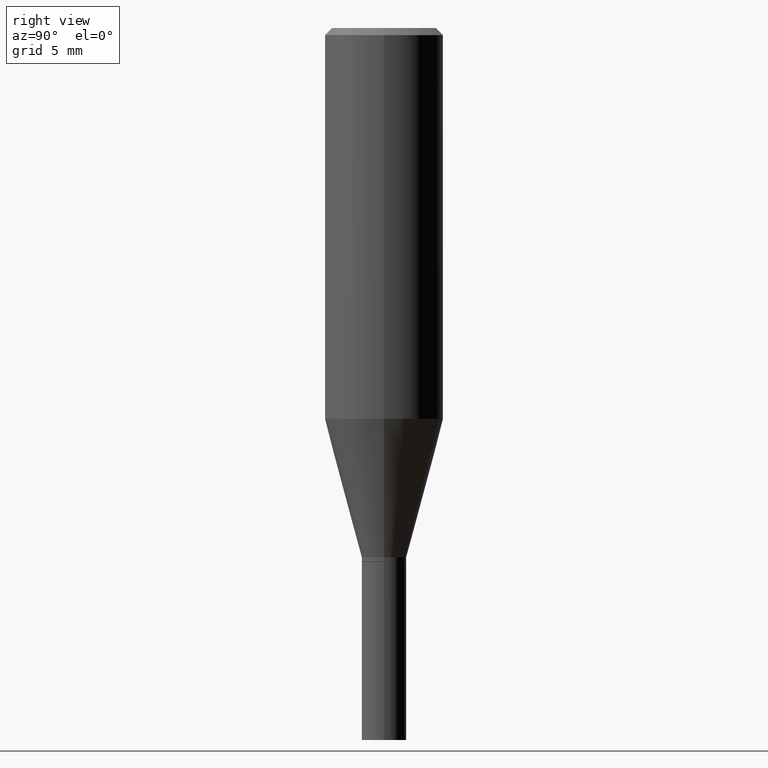
[diagram: clean part render]
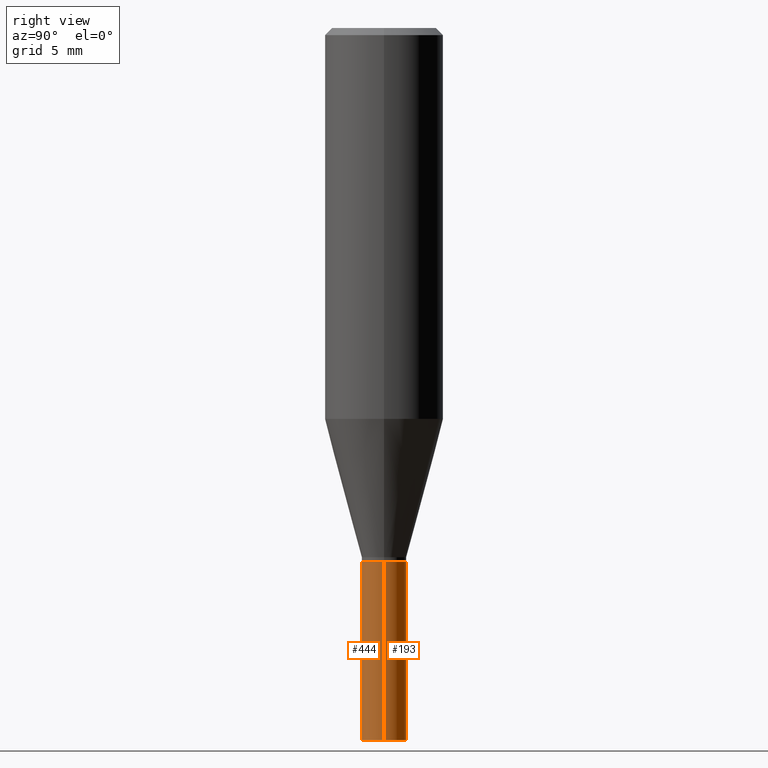
[diagram: same view with one multi-face feature highlighted, each face labeled with its STEP entity id]
A machine part, right view. The highlighted faces form ONE feature: a constant-radius fillet chain: 2 tangent blend faces with common blend radius 1.1913 mm. The faces share edges in the B-rep.
Their STEP definitions:
[1] entity #444 (Cylinder):
#16 = AXIS2_PLACEMENT_3D ( 'NONE', #169, #165, #236 ) ;
#19 = DIRECTION ( 'NONE',  ( -2.445468806185136597E-29, 3.491481338843145583E-15, 1.000000000000000000 ) ) ;
#22 = CARTESIAN_POINT ( 'NONE',  ( 2.751152406958279232E-29, -3.927916506198539224E-15, -1.125000000000000222 ) ) ;
#56 = EDGE_CURVE ( 'NONE', #301, #412, #255, .T. ) ;
#64 = CARTESIAN_POINT ( 'NONE',  ( 0.04689999999999999725, -4.255417455782025127E-15, -1.125000000000000222 ) ) ;
#67 = EDGE_CURVE ( 'NONE', #466, #210, #80, .T. ) ;
#80 = LINE ( 'NONE', #222, #166 ) ;
#91 = ORIENTED_EDGE ( 'NONE', *, *, #140, .F. ) ;
#139 = FACE_OUTER_BOUND ( 'NONE', #421, .T. ) ;
#140 = EDGE_CURVE ( 'NONE', #210, #412, #221, .T. ) ;
#148 = AXIS2_PLACEMENT_3D ( 'NONE', #162, #300, #291 ) ;
#157 = ORIENTED_EDGE ( 'NONE', *, *, #333, .T. ) ;
#162 = CARTESIAN_POINT ( 'NONE',  ( 3.668203209277704895E-29, -5.237222008264718177E-15, -1.500000000000000222 ) ) ;
#165 = DIRECTION ( 'NONE',  ( -2.445468806185136597E-29, 3.491481338843145583E-15, 1.000000000000000000 ) ) ;
#166 = VECTOR ( 'NONE', #435, 39.37007874015748143 ) ;
#169 = CARTESIAN_POINT ( 'NONE',  ( 0.000000000000000000, 0.000000000000000000, 0.000000000000000000 ) ) ;
#182 = DIRECTION ( 'NONE',  ( -2.445468806185136877E-29, 3.491481338843145188E-15, 1.000000000000000000 ) ) ;
#187 = ORIENTED_EDGE ( 'NONE', *, *, #56, .T. ) ;
#210 = VERTEX_POINT ( 'NONE', #361 ) ;
#221 = CIRCLE ( 'NONE', #407, 0.04689999999999999725 ) ;
#222 = CARTESIAN_POINT ( 'NONE',  ( -0.04689999999999999725, 3.332445430714869676E-16, -2.306980557329550952E-30 ) ) ;
#228 = DIRECTION ( 'NONE',  ( 1.000000000000000000, -6.982962677686266711E-15, 0.000000000000000000 ) ) ;
#236 = DIRECTION ( 'NONE',  ( 1.000000000000000000, -6.982962677686266711E-15, 4.876176775795936353E-29 ) ) ;
#255 = LINE ( 'NONE', #318, #395 ) ;
#290 = ORIENTED_EDGE ( 'NONE', *, *, #67, .F. ) ;
#291 = DIRECTION ( 'NONE',  ( 1.000000000000000000, -6.982962677686256455E-15, 0.000000000000000000 ) ) ;
#298 = CARTESIAN_POINT ( 'NONE',  ( 0.04689999999999999725, -5.564722957848204079E-15, -1.500000000000000222 ) ) ;
#300 = DIRECTION ( 'NONE',  ( -2.445468806185136597E-29, 3.491481338843145583E-15, 1.000000000000000000 ) ) ;
#301 = VERTEX_POINT ( 'NONE', #298 ) ;
#318 = CARTESIAN_POINT ( 'NONE',  ( 0.04689999999999999725, -3.275009495834859024E-16, 2.286926907848294038E-30 ) ) ;
#333 = EDGE_CURVE ( 'NONE', #466, #301, #338, .T. ) ;
#338 = CIRCLE ( 'NONE', #148, 0.04689999999999999725 ) ;
#348 = CYLINDRICAL_SURFACE ( 'NONE', #16, 0.04689999999999999725 ) ;
#361 = CARTESIAN_POINT ( 'NONE',  ( -0.04689999999999999725, -4.249324714160141733E-15, -1.125000000000000222 ) ) ;
#395 = VECTOR ( 'NONE', #182, 39.37007874015748143 ) ;
#407 = AXIS2_PLACEMENT_3D ( 'NONE', #22, #19, #228 ) ;
#412 = VERTEX_POINT ( 'NONE', #64 ) ;
#421 = EDGE_LOOP ( 'NONE', ( #290, #157, #187, #91 ) ) ;
#435 = DIRECTION ( 'NONE',  ( -2.445468806185136877E-29, 3.491481338843145188E-15, 1.000000000000000000 ) ) ;
#444 = ADVANCED_FACE ( 'NONE', ( #139 ), #348, .T. ) ;
#450 = CARTESIAN_POINT ( 'NONE',  ( -0.04689999999999999725, -4.249324714160141733E-15, -1.500000000000000222 ) ) ;
#466 = VERTEX_POINT ( 'NONE', #450 ) ;
[2] entity #193 (Cylinder):
#7 = CARTESIAN_POINT ( 'NONE',  ( 2.751152406958279232E-29, -3.927916506198539224E-15, -1.125000000000000222 ) ) ;
#56 = EDGE_CURVE ( 'NONE', #301, #412, #255, .T. ) ;
#64 = CARTESIAN_POINT ( 'NONE',  ( 0.04689999999999999725, -4.255417455782025127E-15, -1.125000000000000222 ) ) ;
#67 = EDGE_CURVE ( 'NONE', #466, #210, #80, .T. ) ;
#72 = EDGE_CURVE ( 'NONE', #301, #466, #253, .T. ) ;
#80 = LINE ( 'NONE', #222, #166 ) ;
#81 = ORIENTED_EDGE ( 'NONE', *, *, #119, .F. ) ;
#101 = ORIENTED_EDGE ( 'NONE', *, *, #67, .T. ) ;
#119 = EDGE_CURVE ( 'NONE', #412, #210, #389, .T. ) ;
#120 = ORIENTED_EDGE ( 'NONE', *, *, #72, .T. ) ;
#132 = ORIENTED_EDGE ( 'NONE', *, *, #56, .F. ) ;
#166 = VECTOR ( 'NONE', #435, 39.37007874015748143 ) ;
#182 = DIRECTION ( 'NONE',  ( -2.445468806185136877E-29, 3.491481338843145188E-15, 1.000000000000000000 ) ) ;
#184 = DIRECTION ( 'NONE',  ( 1.000000000000000000, -6.982962677686266711E-15, 0.000000000000000000 ) ) ;
#189 = AXIS2_PLACEMENT_3D ( 'NONE', #7, #330, #184 ) ;
#190 = CARTESIAN_POINT ( 'NONE',  ( 0.000000000000000000, 0.000000000000000000, 0.000000000000000000 ) ) ;
#193 = ADVANCED_FACE ( 'NONE', ( #402 ), #445, .T. ) ;
#210 = VERTEX_POINT ( 'NONE', #361 ) ;
#218 = EDGE_LOOP ( 'NONE', ( #120, #101, #81, #132 ) ) ;
#222 = CARTESIAN_POINT ( 'NONE',  ( -0.04689999999999999725, 3.332445430714869676E-16, -2.306980557329550952E-30 ) ) ;
#252 = DIRECTION ( 'NONE',  ( -2.445468806185136597E-29, 3.491481338843145583E-15, 1.000000000000000000 ) ) ;
#253 = CIRCLE ( 'NONE', #293, 0.04689999999999999725 ) ;
#255 = LINE ( 'NONE', #318, #395 ) ;
#256 = CARTESIAN_POINT ( 'NONE',  ( 3.668203209277704895E-29, -5.237222008264718177E-15, -1.500000000000000222 ) ) ;
#293 = AXIS2_PLACEMENT_3D ( 'NONE', #256, #436, #372 ) ;
#298 = CARTESIAN_POINT ( 'NONE',  ( 0.04689999999999999725, -5.564722957848204079E-15, -1.500000000000000222 ) ) ;
#301 = VERTEX_POINT ( 'NONE', #298 ) ;
#318 = CARTESIAN_POINT ( 'NONE',  ( 0.04689999999999999725, -3.275009495834859024E-16, 2.286926907848294038E-30 ) ) ;
#330 = DIRECTION ( 'NONE',  ( -2.445468806185136597E-29, 3.491481338843145583E-15, 1.000000000000000000 ) ) ;
#361 = CARTESIAN_POINT ( 'NONE',  ( -0.04689999999999999725, -4.249324714160141733E-15, -1.125000000000000222 ) ) ;
#372 = DIRECTION ( 'NONE',  ( 1.000000000000000000, -6.982962677686256455E-15, 0.000000000000000000 ) ) ;
#389 = CIRCLE ( 'NONE', #189, 0.04689999999999999725 ) ;
#395 = VECTOR ( 'NONE', #182, 39.37007874015748143 ) ;
#402 = FACE_OUTER_BOUND ( 'NONE', #218, .T. ) ;
#405 = DIRECTION ( 'NONE',  ( 1.000000000000000000, -6.982962677686266711E-15, 4.876176775795936353E-29 ) ) ;
#412 = VERTEX_POINT ( 'NONE', #64 ) ;
#420 = AXIS2_PLACEMENT_3D ( 'NONE', #190, #252, #405 ) ;
#435 = DIRECTION ( 'NONE',  ( -2.445468806185136877E-29, 3.491481338843145188E-15, 1.000000000000000000 ) ) ;
#436 = DIRECTION ( 'NONE',  ( -2.445468806185136597E-29, 3.491481338843145583E-15, 1.000000000000000000 ) ) ;
#445 = CYLINDRICAL_SURFACE ( 'NONE', #420, 0.04689999999999999725 ) ;
#450 = CARTESIAN_POINT ( 'NONE',  ( -0.04689999999999999725, -4.249324714160141733E-15, -1.500000000000000222 ) ) ;
#466 = VERTEX_POINT ( 'NONE', #450 ) ;